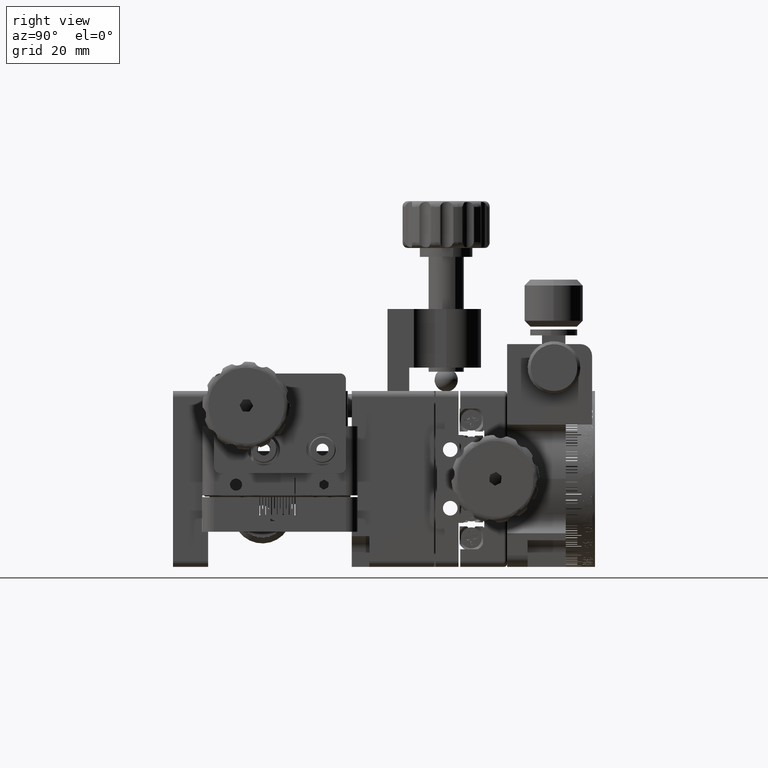
[diagram: clean part render]
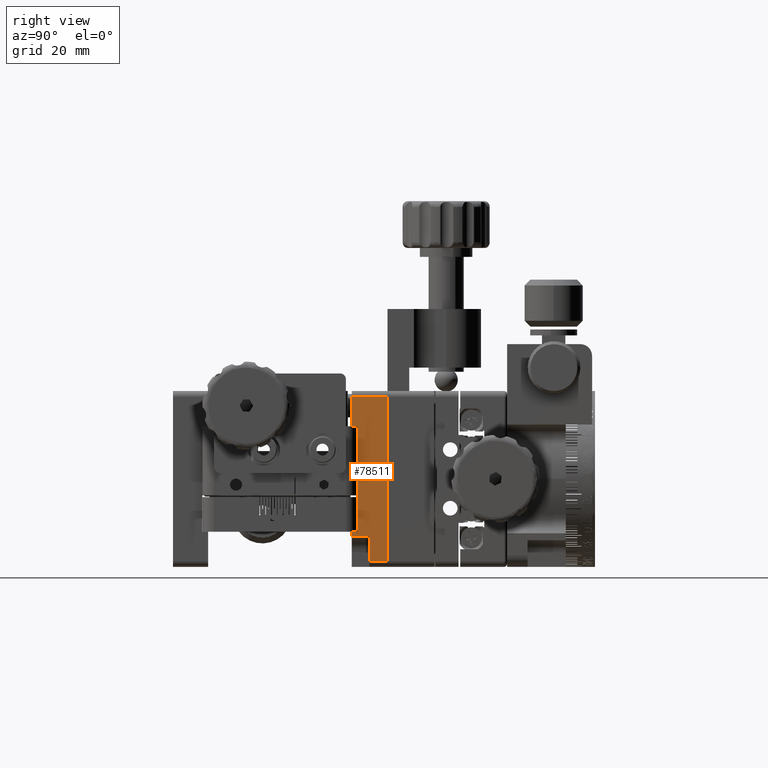
[diagram: same view with one face highlighted and labeled with its STEP entity id]
A machine part, right view. The second image highlights one B-rep face of the part: STEP entity #78511.
In plain terms, the highlighted planar face has unit normal (-1, 0, 0).
Its self-contained STEP definition (entity closure, byte-faithful):
#969 = CARTESIAN_POINT ( 'NONE',  ( 15.00000000000033396, 36.50212255370681191, -9.000000000000003553 ) ) ;
#1093 = CARTESIAN_POINT ( 'NONE',  ( 15.00000000000033396, 36.50212255370681191, 14.00000000000000355 ) ) ;
#1359 = DIRECTION ( 'NONE',  ( 0.000000000000000000, -1.000000000000000000, 0.000000000000000000 ) ) ;
#1379 = LINE ( 'NONE', #53014, #50578 ) ;
#2006 = VECTOR ( 'NONE', #28959, 1000.000000000000000 ) ;
#3051 = VERTEX_POINT ( 'NONE', #16329 ) ;
#4055 = VERTEX_POINT ( 'NONE', #1093 ) ;
#7043 = EDGE_CURVE ( 'NONE', #4055, #49929, #28549, .T. ) ;
#8435 = EDGE_CURVE ( 'NONE', #3051, #47991, #9248, .T. ) ;
#9039 = ORIENTED_EDGE ( 'NONE', *, *, #43733, .T. ) ;
#9248 = LINE ( 'NONE', #70626, #22934 ) ;
#9282 = EDGE_CURVE ( 'NONE', #4055, #24083, #28514, .T. ) ;
#9339 = VERTEX_POINT ( 'NONE', #13003 ) ;
#13003 = CARTESIAN_POINT ( 'NONE',  ( 15.00000000000033396, 30.50212255370681191, 8.999999999999998224 ) ) ;
#16329 = CARTESIAN_POINT ( 'NONE',  ( 15.00000000000033396, 30.50212255370681191, -9.000000000000001776 ) ) ;
#16988 = CARTESIAN_POINT ( 'NONE',  ( 15.00000000000033396, 36.50212255370681191, 15.00000000000000533 ) ) ;
#19125 = DIRECTION ( 'NONE',  ( 0.000000000000000000, 0.000000000000000000, -1.000000000000000000 ) ) ;
#19148 = VECTOR ( 'NONE', #51079, 1000.000000000000000 ) ;
#22934 = VECTOR ( 'NONE', #59266, 1000.000000000000000 ) ;
#23118 = VECTOR ( 'NONE', #79206, 1000.000000000000000 ) ;
#23229 = CARTESIAN_POINT ( 'NONE',  ( 15.00000000000033396, 30.50212255370681191, -9.750000000000003553 ) ) ;
#24083 = VERTEX_POINT ( 'NONE', #53348 ) ;
#25408 = LINE ( 'NONE', #969, #65043 ) ;
#25468 = CARTESIAN_POINT ( 'NONE',  ( 15.00000000000033396, 30.50212255370681191, 14.00000000000000355 ) ) ;
#28261 = ORIENTED_EDGE ( 'NONE', *, *, #30662, .T. ) ;
#28514 = LINE ( 'NONE', #50053, #44873 ) ;
#28549 = LINE ( 'NONE', #53345, #2006 ) ;
#28959 = DIRECTION ( 'NONE',  ( 0.000000000000000000, -1.000000000000000000, 0.000000000000000000 ) ) ;
#29219 = PLANE ( 'NONE',  #67258 ) ;
#29356 = EDGE_CURVE ( 'NONE', #52349, #31002, #42165, .T. ) ;
#30662 = EDGE_CURVE ( 'NONE', #47991, #52349, #77650, .T. ) ;
#31002 = VERTEX_POINT ( 'NONE', #46265 ) ;
#32397 = CARTESIAN_POINT ( 'NONE',  ( 15.00000000000033396, 30.50212255370681191, 15.00000000000000533 ) ) ;
#34729 = DIRECTION ( 'NONE',  ( -0.000000000000000000, 1.000000000000000000, -0.000000000000000000 ) ) ;
#36424 = CARTESIAN_POINT ( 'NONE',  ( 15.00000000000033396, 36.50212255370681191, 8.999999999999998224 ) ) ;
#39392 = ORIENTED_EDGE ( 'NONE', *, *, #42726, .T. ) ;
#40149 = EDGE_CURVE ( 'NONE', #45085, #42364, #60511, .T. ) ;
#41798 = EDGE_LOOP ( 'NONE', ( #66952, #39392, #61504, #46647, #48716, #9039, #48819, #66762, #72948, #28261 ) ) ;
#42026 = CARTESIAN_POINT ( 'NONE',  ( 15.00000000000033396, 31.50212255370680836, 8.999999999999998224 ) ) ;
#42165 = LINE ( 'NONE', #49090, #47210 ) ;
#42364 = VERTEX_POINT ( 'NONE', #75207 ) ;
#42506 = LINE ( 'NONE', #36424, #48201 ) ;
#42726 = EDGE_CURVE ( 'NONE', #31002, #24083, #1379, .T. ) ;
#43733 = EDGE_CURVE ( 'NONE', #9339, #45085, #42506, .T. ) ;
#43794 = EDGE_CURVE ( 'NONE', #42364, #3051, #25408, .T. ) ;
#44762 = CARTESIAN_POINT ( 'NONE',  ( 15.00000000000033396, 36.50212255370681191, -9.750000000000003553 ) ) ;
#44873 = VECTOR ( 'NONE', #19125, 1000.000000000000000 ) ;
#45085 = VERTEX_POINT ( 'NONE', #42026 ) ;
#46265 = CARTESIAN_POINT ( 'NONE',  ( 15.00000000000033396, 33.50212255370681191, -13.99999999999999289 ) ) ;
#46647 = ORIENTED_EDGE ( 'NONE', *, *, #7043, .T. ) ;
#47210 = VECTOR ( 'NONE', #47869, 1000.000000000000000 ) ;
#47799 = CARTESIAN_POINT ( 'NONE',  ( 15.00000000000033396, 33.50212255370681191, -9.750000000000003553 ) ) ;
#47869 = DIRECTION ( 'NONE',  ( 0.000000000000000000, 0.000000000000000000, -1.000000000000000000 ) ) ;
#47991 = VERTEX_POINT ( 'NONE', #23229 ) ;
#48201 = VECTOR ( 'NONE', #55105, 1000.000000000000000 ) ;
#48716 = ORIENTED_EDGE ( 'NONE', *, *, #57537, .T. ) ;
#48729 = DIRECTION ( 'NONE',  ( 0.000000000000000000, 0.000000000000000000, 1.000000000000000000 ) ) ;
#48819 = ORIENTED_EDGE ( 'NONE', *, *, #40149, .T. ) ;
#49090 = CARTESIAN_POINT ( 'NONE',  ( 15.00000000000033396, 33.50212255370681191, 15.00000000000000533 ) ) ;
#49929 = VERTEX_POINT ( 'NONE', #25468 ) ;
#50053 = CARTESIAN_POINT ( 'NONE',  ( 15.00000000000033396, 36.50212255370681191, 15.00000000000000533 ) ) ;
#50578 = VECTOR ( 'NONE', #34729, 1000.000000000000000 ) ;
#51079 = DIRECTION ( 'NONE',  ( 0.000000000000000000, 0.000000000000000000, -1.000000000000000000 ) ) ;
#52349 = VERTEX_POINT ( 'NONE', #47799 ) ;
#53014 = CARTESIAN_POINT ( 'NONE',  ( 15.00000000000033396, 36.50212255370681191, -13.99999999999999289 ) ) ;
#53345 = CARTESIAN_POINT ( 'NONE',  ( 15.00000000000033396, 36.50212255370681191, 14.00000000000000355 ) ) ;
#53348 = CARTESIAN_POINT ( 'NONE',  ( 15.00000000000033396, 36.50212255370681191, -13.99999999999999289 ) ) ;
#53590 = DIRECTION ( 'NONE',  ( -1.000000000000000000, 0.000000000000000000, 0.000000000000000000 ) ) ;
#55105 = DIRECTION ( 'NONE',  ( 0.000000000000000000, 1.000000000000000000, -0.000000000000000000 ) ) ;
#57537 = EDGE_CURVE ( 'NONE', #49929, #9339, #63263, .T. ) ;
#59266 = DIRECTION ( 'NONE',  ( 0.000000000000000000, 0.000000000000000000, -1.000000000000000000 ) ) ;
#60085 = VECTOR ( 'NONE', #69937, 1000.000000000000000 ) ;
#60511 = LINE ( 'NONE', #77983, #23118 ) ;
#61504 = ORIENTED_EDGE ( 'NONE', *, *, #9282, .F. ) ;
#63263 = LINE ( 'NONE', #32397, #19148 ) ;
#65043 = VECTOR ( 'NONE', #1359, 1000.000000000000000 ) ;
#66762 = ORIENTED_EDGE ( 'NONE', *, *, #43794, .T. ) ;
#66952 = ORIENTED_EDGE ( 'NONE', *, *, #29356, .T. ) ;
#67258 = AXIS2_PLACEMENT_3D ( 'NONE', #16988, #53590, #48729 ) ;
#67391 = FACE_OUTER_BOUND ( 'NONE', #41798, .T. ) ;
#69937 = DIRECTION ( 'NONE',  ( 0.000000000000000000, 1.000000000000000000, 0.000000000000000000 ) ) ;
#70626 = CARTESIAN_POINT ( 'NONE',  ( 15.00000000000033396, 30.50212255370681191, 15.00000000000000533 ) ) ;
#72948 = ORIENTED_EDGE ( 'NONE', *, *, #8435, .T. ) ;
#75207 = CARTESIAN_POINT ( 'NONE',  ( 15.00000000000033396, 31.50212255370680836, -9.000000000000001776 ) ) ;
#77650 = LINE ( 'NONE', #44762, #60085 ) ;
#77983 = CARTESIAN_POINT ( 'NONE',  ( 15.00000000000033396, 31.50212255370680836, 15.00000000000000533 ) ) ;
#78511 = ADVANCED_FACE ( 'NONE', ( #67391 ), #29219, .F. ) ;
#79206 = DIRECTION ( 'NONE',  ( 0.000000000000000000, 0.000000000000000000, -1.000000000000000000 ) ) ;